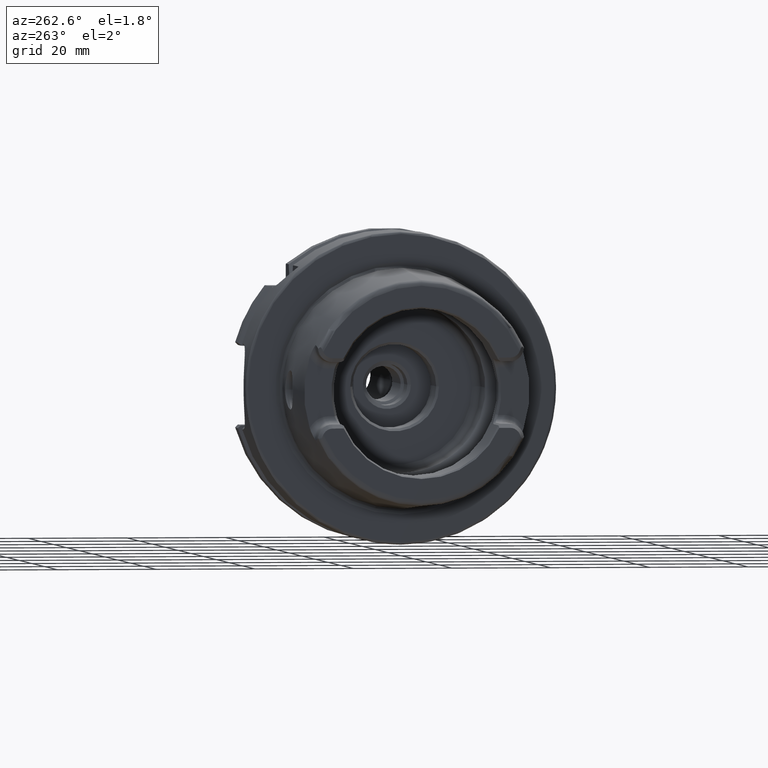
[diagram: clean part render]
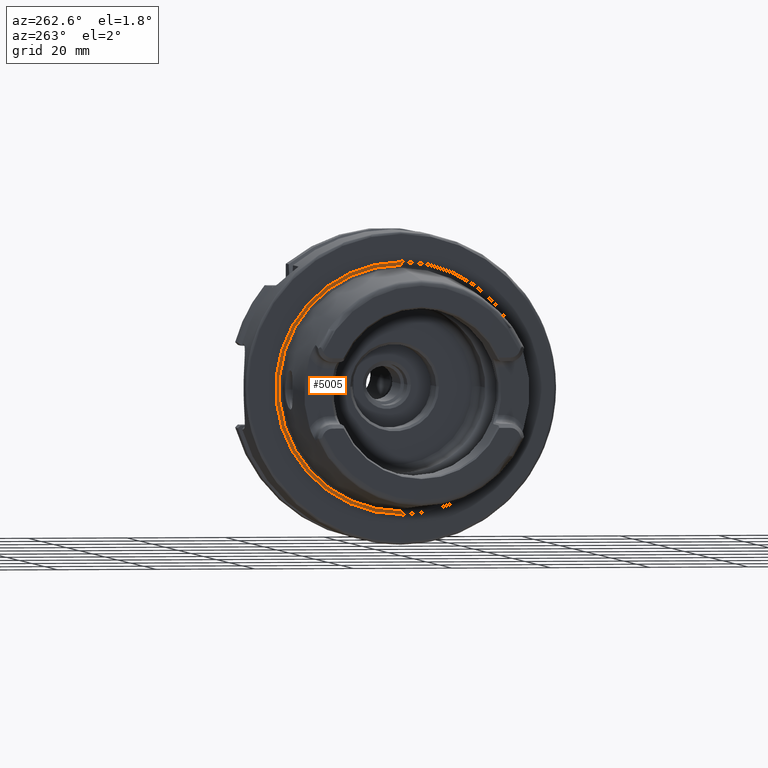
[diagram: same view with one face highlighted and labeled with its STEP entity id]
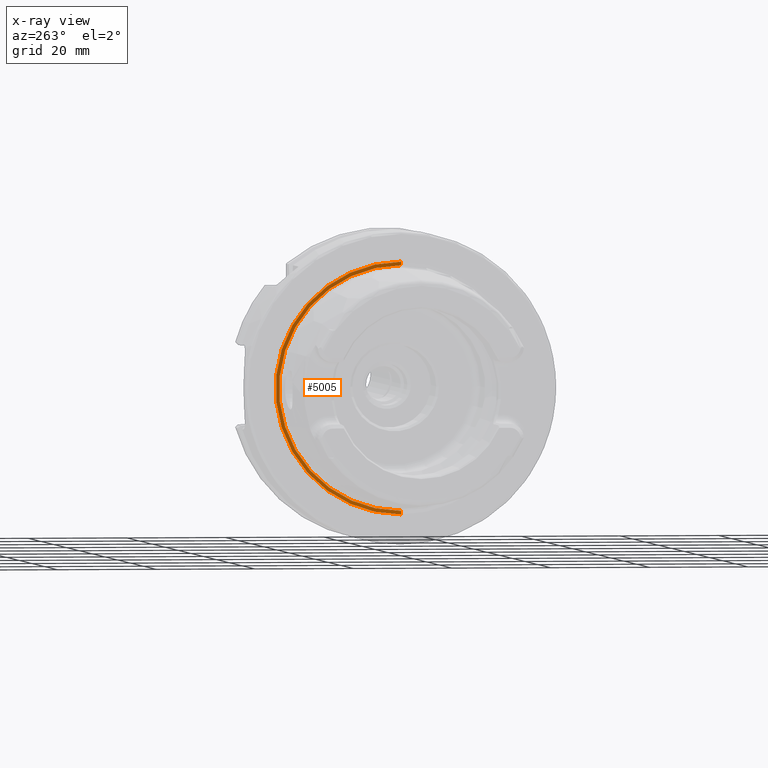
[diagram: x-ray of the same camera — body ghosted, the highlighted face saturated]
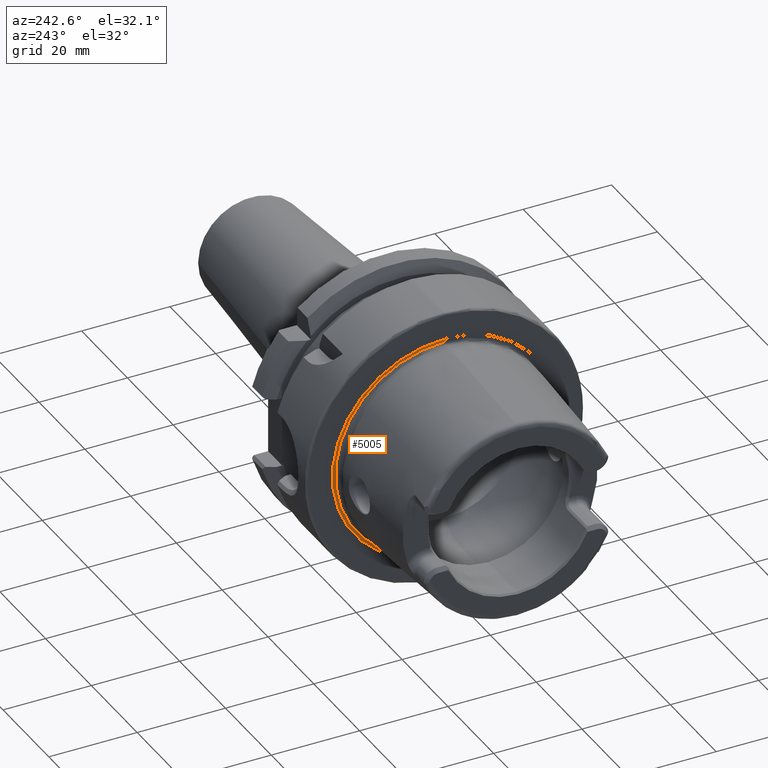
[diagram: same view with one face highlighted and labeled with its STEP entity id]
A machine part, auxiliary view. The second image highlights one B-rep face of the part: STEP entity #5005.
The next image is the same camera in x-ray: the body ghosted, the highlighted face saturated — about 0% of this face is hidden behind the body in this view.
A second angle (auxiliary view) of the same face is appended — the face is thin or edge-on in the first view.
In plain terms, the highlighted conical surface has half-angle 82 deg.
Its self-contained STEP definition (entity closure, byte-faithful):
#1625=CARTESIAN_POINT('',(0.E0,0.E0,0.E0));
#1626=DIRECTION('',(1.E0,0.E0,0.E0));
#1627=DIRECTION('',(0.E0,0.E0,-1.E0));
#1628=AXIS2_PLACEMENT_3D('',#1625,#1626,#1627);
#1645=CARTESIAN_POINT('',(3.964447460460E-3,0.E0,0.E0));
#1646=DIRECTION('',(-1.E0,0.E0,0.E0));
#1647=DIRECTION('',(0.E0,0.E0,1.E0));
#1648=AXIS2_PLACEMENT_3D('',#1645,#1646,#1647);
#1665=DIRECTION('',(-1.391731009601E-1,-1.971743711255E-13,9.902680687416E-1));
#1666=VECTOR('',#1665,2.848573059829E-2);
#1667=CARTESIAN_POINT('',(3.964447460478E-3,0.E0,9.725946401800E-1));
#1668=LINE('',#1667,#1666);
#1669=DIRECTION('',(-1.391731009601E-1,2.015158090442E-13,-9.902680687416E-1));
#1670=VECTOR('',#1669,2.848573059829E-2);
#1671=CARTESIAN_POINT('',(3.964447460478E-3,0.E0,-9.725946401800E-1));
#1672=LINE('',#1671,#1670);
#2879=CARTESIAN_POINT('',(0.E0,0.E0,-1.000803149606E0));
#2880=CARTESIAN_POINT('',(0.E0,0.E0,1.000803149606E0));
#2881=VERTEX_POINT('',#2879);
#2882=VERTEX_POINT('',#2880);
#2891=CARTESIAN_POINT('',(3.964447460460E-3,0.E0,-9.725946401802E-1));
#2892=CARTESIAN_POINT('',(3.964447460460E-3,0.E0,9.725946401802E-1));
#2893=VERTEX_POINT('',#2891);
#2894=VERTEX_POINT('',#2892);
#4991=CARTESIAN_POINT('',(1.982223730230E-3,0.E0,0.E0));
#4992=DIRECTION('',(-1.E0,0.E0,0.E0));
#4993=DIRECTION('',(0.E0,0.E0,-1.E0));
#4994=AXIS2_PLACEMENT_3D('',#4991,#4992,#4993);
#4995=CONICAL_SURFACE('',#4994,9.866988948932E-1,8.2E1);
#4997=ORIENTED_EDGE('',*,*,#4996,.T.);
#4999=ORIENTED_EDGE('',*,*,#4998,.T.);
#5000=ORIENTED_EDGE('',*,*,#4984,.T.);
#5002=ORIENTED_EDGE('',*,*,#5001,.F.);
#5003=EDGE_LOOP('',(#4997,#4999,#5000,#5002));
#5004=FACE_OUTER_BOUND('',#5003,.F.);
#5005=ADVANCED_FACE('',(#5004),#4995,.F.);
#1629=CIRCLE('',#1628,1.000803149606E0);
#1649=CIRCLE('',#1648,9.725946401802E-1);
#4984=EDGE_CURVE('',#2881,#2882,#1629,.T.);
#4996=EDGE_CURVE('',#2894,#2893,#1649,.T.);
#4998=EDGE_CURVE('',#2893,#2881,#1672,.T.);
#5001=EDGE_CURVE('',#2894,#2882,#1668,.T.);